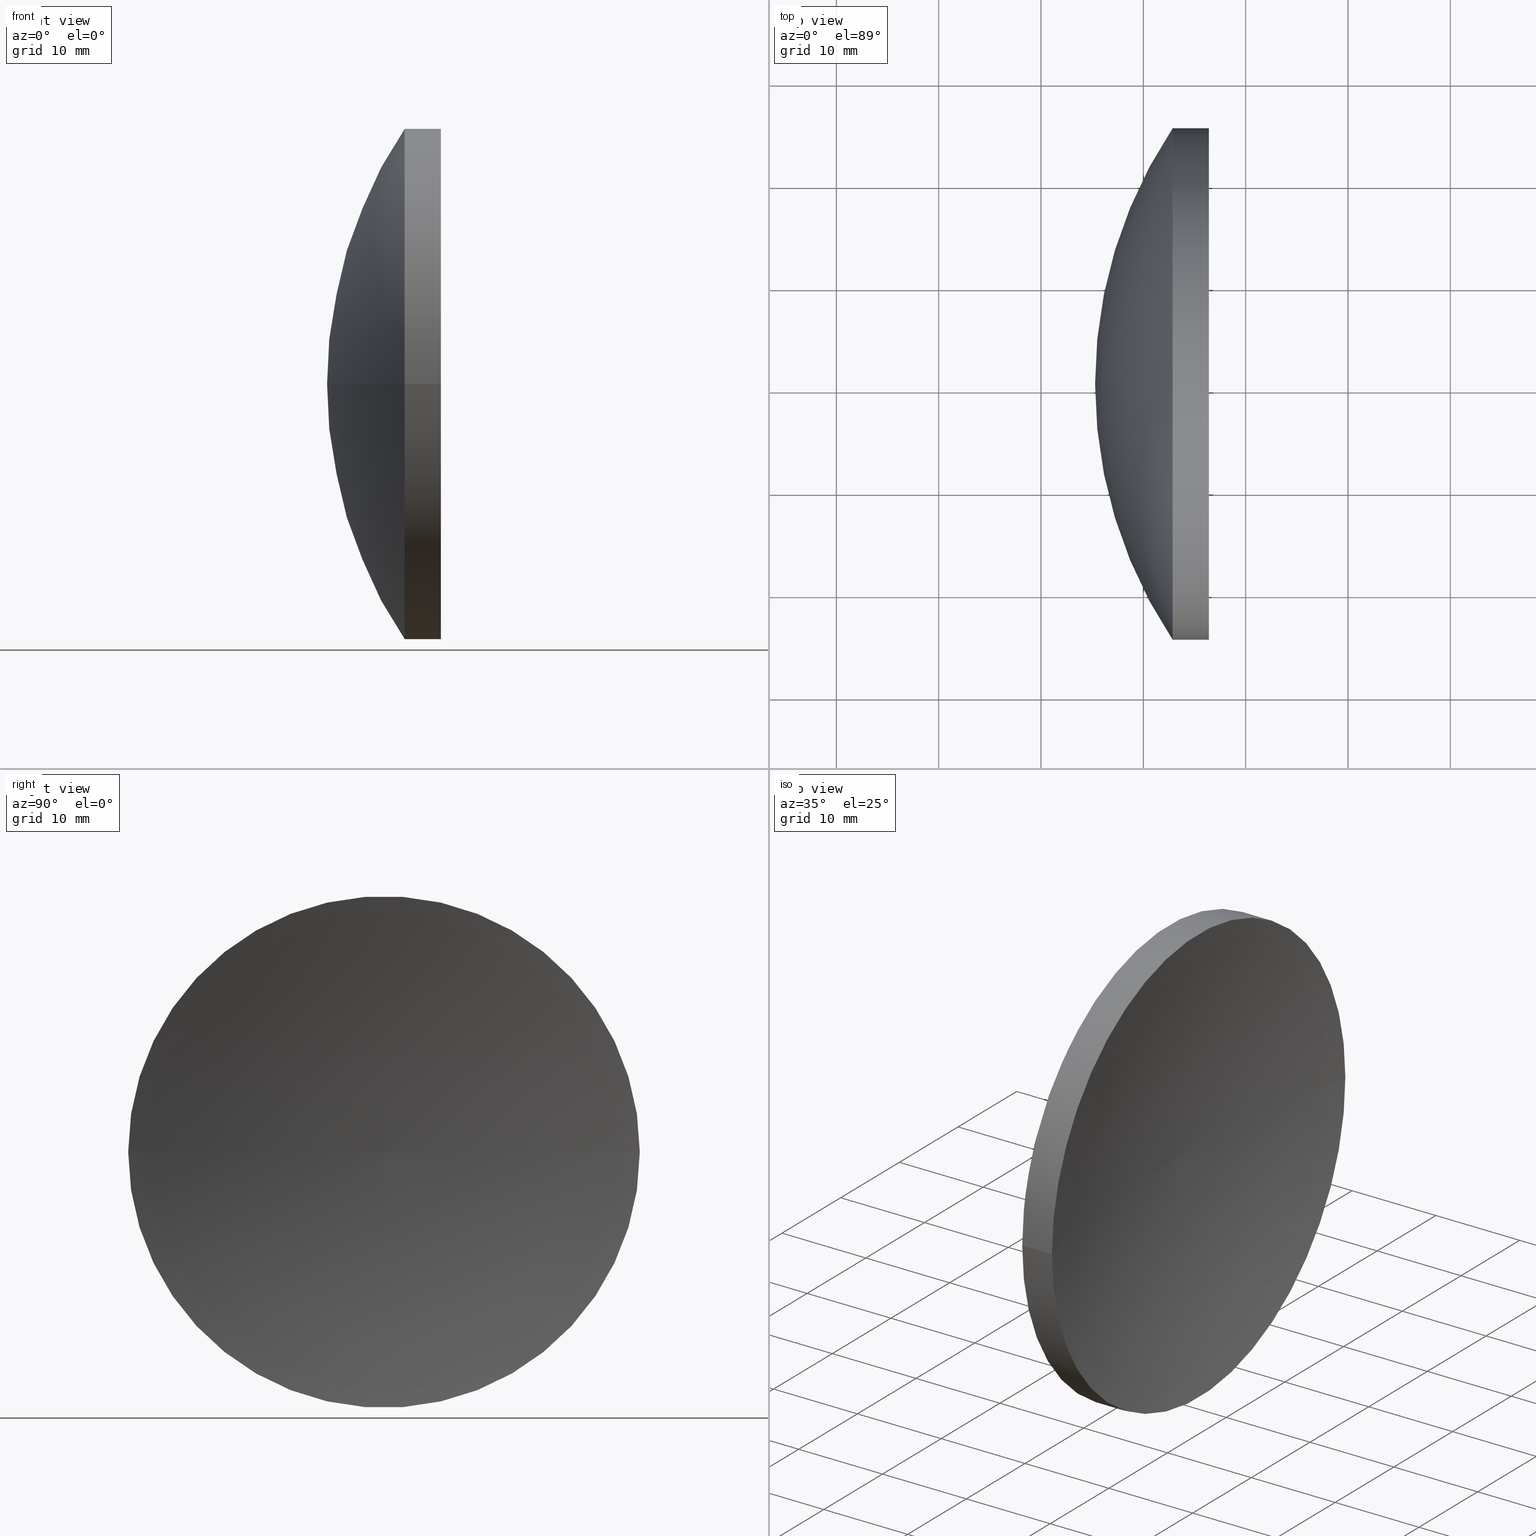
[diagram: canonical four-view strip — front | top / right | iso, engineering-drawing reading convention]
A machine part, canonical four-view strip (front | top / right | iso — engineering-drawing reading convention). The complete STEP part file that produces these views, byte-faithful:
ISO-10303-21;
HEADER;
FILE_DESCRIPTION (( 'STEP AP214' ),
    '1' );
FILE_NAME ('150020.STEP',
    '2019-07-05T01:40:18',
    ( '' ),
    ( '' ),
    'SwSTEP 2.0',
    'SolidWorks 2016',
    '' );
FILE_SCHEMA (( 'AUTOMOTIVE_DESIGN' ));
ENDSEC;

DATA;
#1 = FACE_OUTER_BOUND ( 'NONE', #158, .T. ) ;
#2 = AXIS2_PLACEMENT_3D ( 'NONE', #75, #51, #123 ) ;
#3 = EDGE_CURVE ( 'NONE', #61, #38, #100, .T. ) ;
#4 = AXIS2_PLACEMENT_3D ( 'NONE', #116, #169, #72 ) ;
#5 = ORIENTED_EDGE ( 'NONE', *, *, #56, .F. ) ;
#6 = DIRECTION ( 'NONE',  ( 1.110223024625157900E-015, -1.000000000000000000, 0.0000000000000000000 ) ) ;
#7 = PRODUCT_RELATED_PRODUCT_CATEGORY ( 'part', '', ( #145 ) ) ;
#8 = PRESENTATION_STYLE_ASSIGNMENT (( #91 ) ) ;
#9 = DIRECTION ( 'NONE',  ( 0.0000000000000000000, -1.000000000000000000, -1.224646799147353200E-016 ) ) ;
#10 = CARTESIAN_POINT ( 'NONE',  ( 365.5821218413742600, 130.4336809418807400, 0.0000000000000000000 ) ) ;
#11 = DIRECTION ( 'NONE',  ( 8.496118506040342700E-032, -1.224646799147353200E-016, 1.000000000000000000 ) ) ;
#12 = ORIENTED_EDGE ( 'NONE', *, *, #71, .F. ) ;
#13 = ORIENTED_EDGE ( 'NONE', *, *, #168, .T. ) ;
#14 = AXIS2_PLACEMENT_3D ( 'NONE', #153, #126, #107 ) ;
#15 = ORIENTED_EDGE ( 'NONE', *, *, #79, .F. ) ;
#16 = VERTEX_POINT ( 'NONE', #139 ) ;
#17 =( GEOMETRIC_REPRESENTATION_CONTEXT ( 3 ) GLOBAL_UNCERTAINTY_ASSIGNED_CONTEXT ( ( #111 ) ) GLOBAL_UNIT_ASSIGNED_CONTEXT ( ( #122, #152, #62 ) ) REPRESENTATION_CONTEXT ( 'NONE', 'WORKASPACE' ) );
#18 = CARTESIAN_POINT ( 'NONE',  ( 290.2821311214902400, 130.4336809418806800, 0.0000000000000000000 ) ) ;
#19 = LINE ( 'NONE', #104, #44 ) ;
#20 = DIRECTION ( 'NONE',  ( -1.000000000000000000, -6.937607244762875000E-016, -0.0000000000000000000 ) ) ;
#21 = DIRECTION ( 'NONE',  ( -1.000000000000000000, -6.937607244762875000E-016, -0.0000000000000000000 ) ) ;
#22 =( GEOMETRIC_REPRESENTATION_CONTEXT ( 3 ) GLOBAL_UNCERTAINTY_ASSIGNED_CONTEXT ( ( #35 ) ) GLOBAL_UNIT_ASSIGNED_CONTEXT ( ( #95, #147, #53 ) ) REPRESENTATION_CONTEXT ( 'NONE', 'WORKASPACE' ) );
#23 = PRODUCT_DEFINITION ( 'δ֪', '', #81, #85 ) ;
#24 = DIRECTION ( 'NONE',  ( -0.0000000000000000000, 0.0000000000000000000, -1.000000000000000000 ) ) ;
#25 = CIRCLE ( 'NONE', #120, 112.0000000000000100 ) ;
#26 = DIRECTION ( 'NONE',  ( 0.0000000000000000000, -1.000000000000000000, 0.0000000000000000000 ) ) ;
#27 = CIRCLE ( 'NONE', #114, 45.00000000000004300 ) ;
#28 = CARTESIAN_POINT ( 'NONE',  ( 0.0000000000000000000, 0.0000000000000000000, 0.0000000000000000000 ) ) ;
#29 = CYLINDRICAL_SURFACE ( 'NONE', #101, 24.99999999999996800 ) ;
#30 = EDGE_LOOP ( 'NONE', ( #87, #170, #47, #124 ) ) ;
#31 = PRESENTATION_STYLE_ASSIGNMENT (( #191 ) ) ;
#32 = CARTESIAN_POINT ( 'NONE',  ( 256.4097896452622600, 130.4336809418806800, 0.0000000000000000000 ) ) ;
#33 = DIRECTION ( 'NONE',  ( -0.0000000000000000000, 0.0000000000000000000, 1.000000000000000000 ) ) ;
#34 = CARTESIAN_POINT ( 'NONE',  ( 252.8655572537508100, 155.4336809418806800, 3.061616997868380700E-015 ) ) ;
#35 = UNCERTAINTY_MEASURE_WITH_UNIT (LENGTH_MEASURE( 1.000000000000000100E-005 ), #95, 'distance_accuracy_value', 'NONE');
#36 = CARTESIAN_POINT ( 'NONE',  ( 231.8889825959263100, 155.4336809418806200, 3.061616997868379100E-015 ) ) ;
#37 = DIRECTION ( 'NONE',  ( 0.0000000000000000000, -1.000000000000000000, 0.0000000000000000000 ) ) ;
#38 = VERTEX_POINT ( 'NONE', #136 ) ;
#39 = FILL_AREA_STYLE_COLOUR ( '', #86 ) ;
#40 = ADVANCED_FACE ( 'NONE', ( #128 ), #29, .T. ) ;
#41 = STYLED_ITEM ( 'NONE', ( #31 ), #77 ) ;
#42 = DIRECTION ( 'NONE',  ( -0.0000000000000000000, 0.0000000000000000000, -1.000000000000000000 ) ) ;
#43 = PRESENTATION_LAYER_ASSIGNMENT (  '', '', ( #41 ) ) ;
#44 = VECTOR ( 'NONE', #142, 1000.000000000000000 ) ;
#45 = EDGE_CURVE ( 'NONE', #16, #92, #134, .T. ) ;
#46 = CIRCLE ( 'NONE', #154, 24.99999999999998200 ) ;
#47 = ORIENTED_EDGE ( 'NONE', *, *, #172, .F. ) ;
#48 = CARTESIAN_POINT ( 'NONE',  ( 231.8889825959263400, 130.4336809418806500, 0.0000000000000000000 ) ) ;
#49 = VERTEX_POINT ( 'NONE', #184 ) ;
#50 = DIRECTION ( 'NONE',  ( -1.000000000000000000, -6.937607244762875000E-016, -0.0000000000000000000 ) ) ;
#51 = DIRECTION ( 'NONE',  ( -1.000000000000000000, -6.937607244762875000E-016, -0.0000000000000000000 ) ) ;
#52 = AXIS2_PLACEMENT_3D ( 'NONE', #32, #141, #64 ) ;
#53 =( NAMED_UNIT ( * ) SI_UNIT ( $, .STERADIAN. ) SOLID_ANGLE_UNIT ( ) );
#54 = PRODUCT_CONTEXT ( 'NONE', #66, 'mechanical' ) ;
#55 =( LENGTH_UNIT ( ) NAMED_UNIT ( * ) SI_UNIT ( .MILLI., .METRE. ) );
#56 = EDGE_CURVE ( 'NONE', #130, #16, #164, .T. ) ;
#57 = ORIENTED_EDGE ( 'NONE', *, *, #133, .F. ) ;
#58 = AXIS2_PLACEMENT_3D ( 'NONE', #94, #129, #37 ) ;
#59 = TOROIDAL_SURFACE ( 'NONE', #165, -0.008036365572015639900, 112.0000000000000100 ) ;
#60 = MECHANICAL_DESIGN_GEOMETRIC_PRESENTATION_REPRESENTATION (  '', ( #41 ), #69 ) ;
#61 = VERTEX_POINT ( 'NONE', #185 ) ;
#62 =( NAMED_UNIT ( * ) SI_UNIT ( $, .STERADIAN. ) SOLID_ANGLE_UNIT ( ) );
#63 = CARTESIAN_POINT ( 'NONE',  ( 290.2821311214902400, 130.4336809418806800, 0.0000000000000000000 ) ) ;
#64 = DIRECTION ( 'NONE',  ( 0.0000000000000000000, -1.000000000000000000, 0.0000000000000000000 ) ) ;
#65 = CARTESIAN_POINT ( 'NONE',  ( 256.4097896452622600, 105.4336809418806800, 0.0000000000000000000 ) ) ;
#66 = APPLICATION_CONTEXT ( 'automotive_design' ) ;
#67 = ORIENTED_EDGE ( 'NONE', *, *, #79, .T. ) ;
#68 = CYLINDRICAL_SURFACE ( 'NONE', #99, 24.99999999999996800 ) ;
#69 =( GEOMETRIC_REPRESENTATION_CONTEXT ( 3 ) GLOBAL_UNCERTAINTY_ASSIGNED_CONTEXT ( ( #102 ) ) GLOBAL_UNIT_ASSIGNED_CONTEXT ( ( #55, #93, #161 ) ) REPRESENTATION_CONTEXT ( 'NONE', 'WORKASPACE' ) );
#70 = ORIENTED_EDGE ( 'NONE', *, *, #172, .T. ) ;
#71 = EDGE_CURVE ( 'NONE', #16, #49, #25, .T. ) ;
#72 = DIRECTION ( 'NONE',  ( 0.0000000000000000000, 1.000000000000000000, 1.224646799147353200E-016 ) ) ;
#73 = FACE_OUTER_BOUND ( 'NONE', #82, .T. ) ;
#74 = ORIENTED_EDGE ( 'NONE', *, *, #3, .F. ) ;
#75 = CARTESIAN_POINT ( 'NONE',  ( 365.5821218413742600, 130.4336809418807400, 0.0000000000000000000 ) ) ;
#76 = DIRECTION ( 'NONE',  ( 0.0000000000000000000, -1.000000000000000000, 0.0000000000000000000 ) ) ;
#77 = ADVANCED_BREP_SHAPE_REPRESENTATION ( '150020', ( #166, #175 ), #22 ) ;
#78 = CARTESIAN_POINT ( 'NONE',  ( 290.2821311214902400, 130.4336809418806800, 0.0000000000000000000 ) ) ;
#79 = EDGE_CURVE ( 'NONE', #92, #38, #27, .T. ) ;
#80 = SURFACE_SIDE_STYLE ('',( #118 ) ) ;
#81 = PRODUCT_DEFINITION_FORMATION_WITH_SPECIFIED_SOURCE ( '�κ�', '', #145, .NOT_KNOWN. ) ;
#82 = EDGE_LOOP ( 'NONE', ( #13, #171, #15 ) ) ;
#83 = ORIENTED_EDGE ( 'NONE', *, *, #133, .T. ) ;
#84 = ORIENTED_EDGE ( 'NONE', *, *, #162, .T. ) ;
#85 = PRODUCT_DEFINITION_CONTEXT ( 'detailed design', #160, 'design' ) ;
#86 = COLOUR_RGB ( '',1.000000000000000000, 1.000000000000000000, 1.000000000000000000 ) ;
#87 = ORIENTED_EDGE ( 'NONE', *, *, #56, .T. ) ;
#88 = FACE_OUTER_BOUND ( 'NONE', #132, .T. ) ;
#89 = EDGE_CURVE ( 'NONE', #130, #61, #19, .T. ) ;
#90 = SURFACE_SIDE_STYLE ('',( #151 ) ) ;
#91 = SURFACE_STYLE_USAGE ( .BOTH. , #90 ) ;
#92 = VERTEX_POINT ( 'NONE', #34 ) ;
#93 =( NAMED_UNIT ( * ) PLANE_ANGLE_UNIT ( ) SI_UNIT ( $, .RADIAN. ) );
#94 = CARTESIAN_POINT ( 'NONE',  ( 252.8655572537508100, 130.4336809418806800, 0.0000000000000000000 ) ) ;
#95 =( LENGTH_UNIT ( ) NAMED_UNIT ( * ) SI_UNIT ( .MILLI., .METRE. ) );
#96 = ADVANCED_FACE ( 'NONE', ( #88 ), #68, .T. ) ;
#97 = ORIENTED_EDGE ( 'NONE', *, *, #162, .F. ) ;
#98 = CIRCLE ( 'NONE', #14, 111.9999999999999900 ) ;
#99 = AXIS2_PLACEMENT_3D ( 'NONE', #48, #106, #6 ) ;
#100 = CIRCLE ( 'NONE', #4, 45.00000000000001400 ) ;
#101 = AXIS2_PLACEMENT_3D ( 'NONE', #121, #182, #117 ) ;
#102 = UNCERTAINTY_MEASURE_WITH_UNIT (LENGTH_MEASURE( 1.000000000000000100E-005 ), #55, 'distance_accuracy_value', 'NONE');
#103 = CLOSED_SHELL ( 'NONE', ( #163, #40, #131, #115, #96, #176 ) ) ;
#104 = CARTESIAN_POINT ( 'NONE',  ( 231.8889825959263600, 105.4336809418806800, 0.0000000000000000000 ) ) ;
#105 = CARTESIAN_POINT ( 'NONE',  ( 365.5821218413742600, 130.4256445763087400, -9.841709374546940000E-019 ) ) ;
#106 = DIRECTION ( 'NONE',  ( -1.000000000000000000, -6.937607244762875000E-016, -0.0000000000000000000 ) ) ;
#107 = DIRECTION ( 'NONE',  ( -1.000000000000000000, 0.0000000000000000000, 0.0000000000000000000 ) ) ;
#108 = CARTESIAN_POINT ( 'NONE',  ( 252.8655572537508100, 130.4336809418806800, 0.0000000000000000000 ) ) ;
#109 = CIRCLE ( 'NONE', #58, 24.99999999999998200 ) ;
#110 = APPLICATION_PROTOCOL_DEFINITION ( 'draft international standard', 'automotive_design', 1998, #66 ) ;
#111 = UNCERTAINTY_MEASURE_WITH_UNIT (LENGTH_MEASURE( 1.000000000000000100E-005 ), #122, 'distance_accuracy_value', 'NONE');
#112 = DIRECTION ( 'NONE',  ( 0.0000000000000000000, 0.0000000000000000000, 1.000000000000000000 ) ) ;
#113 = SPHERICAL_SURFACE ( 'NONE', #178, 45.00000000000001400 ) ;
#114 = AXIS2_PLACEMENT_3D ( 'NONE', #63, #33, #140 ) ;
#115 = ADVANCED_FACE ( 'NONE', ( #119 ), #59, .F. ) ;
#116 = CARTESIAN_POINT ( 'NONE',  ( 290.2821311214902400, 130.4336809418806800, 0.0000000000000000000 ) ) ;
#117 = DIRECTION ( 'NONE',  ( 1.110223024625157900E-015, -1.000000000000000000, 0.0000000000000000000 ) ) ;
#118 = SURFACE_STYLE_FILL_AREA ( #156 ) ;
#119 = FACE_OUTER_BOUND ( 'NONE', #138, .T. ) ;
#120 = AXIS2_PLACEMENT_3D ( 'NONE', #105, #11, #9 ) ;
#121 = CARTESIAN_POINT ( 'NONE',  ( 231.8889825959263400, 130.4336809418806500, 0.0000000000000000000 ) ) ;
#122 =( LENGTH_UNIT ( ) NAMED_UNIT ( * ) SI_UNIT ( .MILLI., .METRE. ) );
#123 = DIRECTION ( 'NONE',  ( 6.937607244762875000E-016, -1.000000000000000000, 0.0000000000000000000 ) ) ;
#124 = ORIENTED_EDGE ( 'NONE', *, *, #89, .F. ) ;
#125 = AXIS2_PLACEMENT_3D ( 'NONE', #18, #24, #188 ) ;
#126 = DIRECTION ( 'NONE',  ( 0.0000000000000000000, 0.0000000000000000000, -1.000000000000000000 ) ) ;
#127 = SHAPE_DEFINITION_REPRESENTATION ( #150, #77 ) ;
#128 = FACE_OUTER_BOUND ( 'NONE', #30, .T. ) ;
#129 = DIRECTION ( 'NONE',  ( -1.000000000000000000, -6.937607244762875000E-016, -0.0000000000000000000 ) ) ;
#130 = VERTEX_POINT ( 'NONE', #65 ) ;
#131 = ADVANCED_FACE ( 'NONE', ( #190 ), #157, .F. ) ;
#132 = EDGE_LOOP ( 'NONE', ( #167, #83, #192, #149 ) ) ;
#133 = EDGE_CURVE ( 'NONE', #16, #130, #143, .T. ) ;
#134 = LINE ( 'NONE', #36, #183 ) ;
#135 = PRESENTATION_LAYER_ASSIGNMENT (  '', '', ( #180 ) ) ;
#136 = CARTESIAN_POINT ( 'NONE',  ( 245.2821311214902400, 130.4336809418806500, 0.0000000000000000000 ) ) ;
#137 = COLOUR_RGB ( '',1.000000000000000000, 1.000000000000000000, 1.000000000000000000 ) ;
#138 = EDGE_LOOP ( 'NONE', ( #12, #5, #84 ) ) ;
#139 = CARTESIAN_POINT ( 'NONE',  ( 256.4097896452622600, 155.4336809418806500, 3.061616997868381100E-015 ) ) ;
#140 = DIRECTION ( 'NONE',  ( 1.000000000000000000, 0.0000000000000000000, 0.0000000000000000000 ) ) ;
#141 = DIRECTION ( 'NONE',  ( -1.000000000000000000, -6.937607244762875000E-016, -0.0000000000000000000 ) ) ;
#142 = DIRECTION ( 'NONE',  ( -1.000000000000000000, -6.937607244762875000E-016, -0.0000000000000000000 ) ) ;
#143 = CIRCLE ( 'NONE', #187, 24.99999999999998200 ) ;
#144 = ORIENTED_EDGE ( 'NONE', *, *, #71, .T. ) ;
#145 = PRODUCT ( '150020', '150020', '', ( #54 ) ) ;
#146 = DIRECTION ( 'NONE',  ( -1.233581138472395900E-015, 1.000000000000000000, 0.0000000000000000000 ) ) ;
#147 =( NAMED_UNIT ( * ) PLANE_ANGLE_UNIT ( ) SI_UNIT ( $, .RADIAN. ) );
#148 = MECHANICAL_DESIGN_GEOMETRIC_PRESENTATION_REPRESENTATION (  '', ( #180 ), #17 ) ;
#149 = ORIENTED_EDGE ( 'NONE', *, *, #168, .F. ) ;
#150 = PRODUCT_DEFINITION_SHAPE ( 'NONE', 'NONE',  #23 ) ;
#151 = SURFACE_STYLE_FILL_AREA ( #173 ) ;
#152 =( NAMED_UNIT ( * ) PLANE_ANGLE_UNIT ( ) SI_UNIT ( $, .RADIAN. ) );
#153 = CARTESIAN_POINT ( 'NONE',  ( 365.5821218413742600, 130.4417173074527300, 0.0000000000000000000 ) ) ;
#154 = AXIS2_PLACEMENT_3D ( 'NONE', #108, #159, #26 ) ;
#155 = DIRECTION ( 'NONE',  ( 6.937607244762875000E-016, -1.000000000000000000, 0.0000000000000000000 ) ) ;
#156 = FILL_AREA_STYLE ('',( #39 ) ) ;
#157 = TOROIDAL_SURFACE ( 'NONE', #2, -0.008036365572015639900, 112.0000000000000100 ) ;
#158 = EDGE_LOOP ( 'NONE', ( #74, #70, #67 ) ) ;
#159 = DIRECTION ( 'NONE',  ( -1.000000000000000000, -6.937607244762875000E-016, -0.0000000000000000000 ) ) ;
#160 = APPLICATION_CONTEXT ( 'automotive_design' ) ;
#161 =( NAMED_UNIT ( * ) SI_UNIT ( $, .STERADIAN. ) SOLID_ANGLE_UNIT ( ) );
#162 = EDGE_CURVE ( 'NONE', #130, #49, #98, .T. ) ;
#163 = ADVANCED_FACE ( 'NONE', ( #73 ), #181, .T. ) ;
#164 = CIRCLE ( 'NONE', #52, 24.99999999999998200 ) ;
#165 = AXIS2_PLACEMENT_3D ( 'NONE', #10, #21, #155 ) ;
#166 = MANIFOLD_SOLID_BREP ( '��ת1', #103 ) ;
#167 = ORIENTED_EDGE ( 'NONE', *, *, #45, .F. ) ;
#168 = EDGE_CURVE ( 'NONE', #92, #61, #109, .T. ) ;
#169 = DIRECTION ( 'NONE',  ( -8.496118506040342700E-032, 1.224646799147353200E-016, -1.000000000000000000 ) ) ;
#170 = ORIENTED_EDGE ( 'NONE', *, *, #45, .T. ) ;
#171 = ORIENTED_EDGE ( 'NONE', *, *, #3, .T. ) ;
#172 = EDGE_CURVE ( 'NONE', #61, #92, #46, .T. ) ;
#173 = FILL_AREA_STYLE ('',( #186 ) ) ;
#174 = CARTESIAN_POINT ( 'NONE',  ( 256.4097896452622600, 130.4336809418806800, 0.0000000000000000000 ) ) ;
#175 = AXIS2_PLACEMENT_3D ( 'NONE', #28, #112, #177 ) ;
#176 = ADVANCED_FACE ( 'NONE', ( #1 ), #113, .T. ) ;
#177 = DIRECTION ( 'NONE',  ( 1.000000000000000000, 0.0000000000000000000, 0.0000000000000000000 ) ) ;
#178 = AXIS2_PLACEMENT_3D ( 'NONE', #78, #42, #146 ) ;
#179 = EDGE_LOOP ( 'NONE', ( #57, #144, #97 ) ) ;
#180 = STYLED_ITEM ( 'NONE', ( #8 ), #166 ) ;
#181 = SPHERICAL_SURFACE ( 'NONE', #125, 45.00000000000001400 ) ;
#182 = DIRECTION ( 'NONE',  ( -1.000000000000000000, -6.937607244762875000E-016, -0.0000000000000000000 ) ) ;
#183 = VECTOR ( 'NONE', #50, 1000.000000000000000 ) ;
#184 = CARTESIAN_POINT ( 'NONE',  ( 253.5821221296920100, 130.4336809418806500, 0.0000000000000000000 ) ) ;
#185 = CARTESIAN_POINT ( 'NONE',  ( 252.8655572537508100, 105.4336809418807000, 0.0000000000000000000 ) ) ;
#186 = FILL_AREA_STYLE_COLOUR ( '', #137 ) ;
#187 = AXIS2_PLACEMENT_3D ( 'NONE', #174, #20, #76 ) ;
#188 = DIRECTION ( 'NONE',  ( -1.233581138472395900E-015, 1.000000000000000000, 0.0000000000000000000 ) ) ;
#189 = APPLICATION_PROTOCOL_DEFINITION ( 'draft international standard', 'automotive_design', 1998, #160 ) ;
#190 = FACE_OUTER_BOUND ( 'NONE', #179, .T. ) ;
#191 = SURFACE_STYLE_USAGE ( .BOTH. , #80 ) ;
#192 = ORIENTED_EDGE ( 'NONE', *, *, #89, .T. ) ;
ENDSEC;
END-ISO-10303-21;
